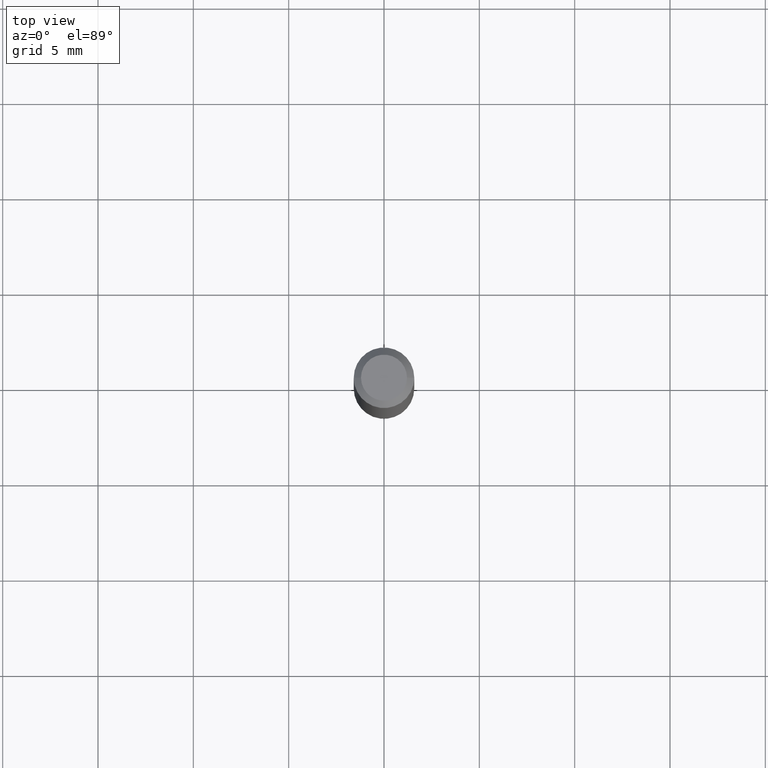
[diagram: clean part render]
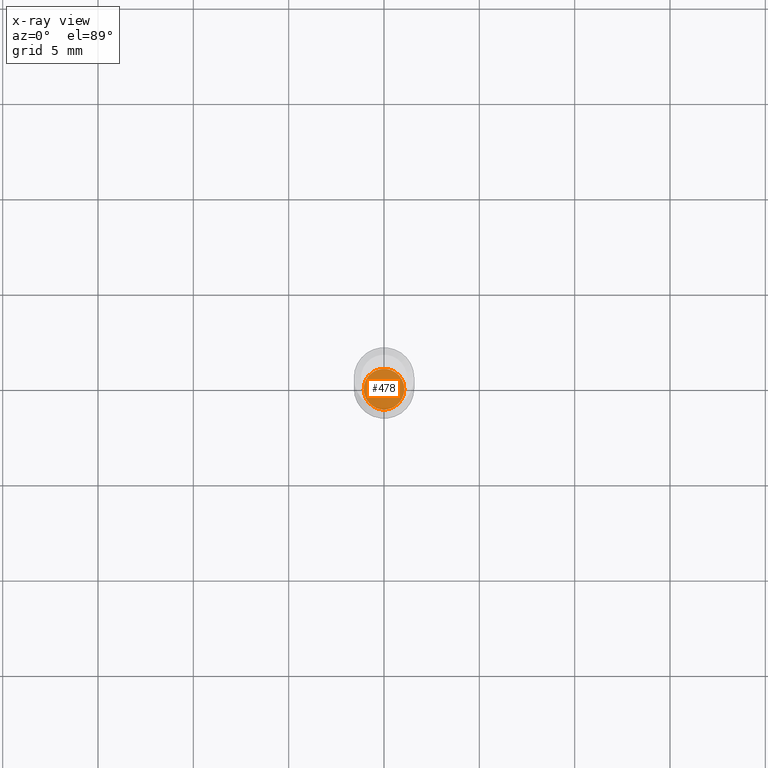
[diagram: x-ray — body ghosted, one internal face saturated and labeled with its STEP entity id]
A machine part, top view, then the same camera in x-ray: the body is ghosted and one INTERNAL B-rep face — a face not visible from any outside direction — is saturated and labeled: STEP entity #478.
In plain terms, the highlighted planar face has unit normal (-0, 0, 1).
Its self-contained STEP definition (entity closure, byte-faithful):
#29 = ORIENTED_EDGE ( 'NONE', *, *, #51, .F. ) ;
#51 = EDGE_CURVE ( 'NONE', #156, #68, #240, .T. ) ;
#68 = VERTEX_POINT ( 'NONE', #255 ) ;
#78 = ORIENTED_EDGE ( 'NONE', *, *, #153, .F. ) ;
#134 = DIRECTION ( 'NONE',  ( 1.000000000000000000, -6.982962677686260400E-15, 0.000000000000000000 ) ) ;
#153 = EDGE_CURVE ( 'NONE', #68, #156, #176, .T. ) ;
#156 = VERTEX_POINT ( 'NONE', #183 ) ;
#176 = CIRCLE ( 'NONE', #496, 0.04200000000000001649 ) ;
#177 = DIRECTION ( 'NONE',  ( -2.438088387897960049E-29, 3.491481338843145188E-15, 1.000000000000000000 ) ) ;
#181 = CARTESIAN_POINT ( 'NONE',  ( 3.355183202086007133E-29, -4.790312396892795908E-15, -1.372000000000000108 ) ) ;
#183 = CARTESIAN_POINT ( 'NONE',  ( -0.04200000000000001649, -4.489235220699443153E-15, -1.372000000000000108 ) ) ;
#225 = DIRECTION ( 'NONE',  ( -2.445468806185136597E-29, 3.491481338843145583E-15, 1.000000000000000000 ) ) ;
#240 = CIRCLE ( 'NONE', #511, 0.04200000000000001649 ) ;
#255 = CARTESIAN_POINT ( 'NONE',  ( 0.04200000000000001649, -5.083596829355619552E-15, -1.372000000000000108 ) ) ;
#258 = DIRECTION ( 'NONE',  ( 1.000000000000000000, -6.982962677686260400E-15, 0.000000000000000000 ) ) ;
#284 = EDGE_LOOP ( 'NONE', ( #78, #29 ) ) ;
#297 = FACE_OUTER_BOUND ( 'NONE', #284, .T. ) ;
#298 = DIRECTION ( 'NONE',  ( -2.445468806185136597E-29, 3.491481338843145583E-15, 1.000000000000000000 ) ) ;
#332 = PLANE ( 'NONE',  #339 ) ;
#339 = AXIS2_PLACEMENT_3D ( 'NONE', #410, #177, #375 ) ;
#375 = DIRECTION ( 'NONE',  ( 1.000000000000000000, -6.982962677686265922E-15, 4.876176775795935793E-29 ) ) ;
#388 = CARTESIAN_POINT ( 'NONE',  ( 3.355183202086007133E-29, -4.790312396892795908E-15, -1.372000000000000108 ) ) ;
#410 = CARTESIAN_POINT ( 'NONE',  ( 3.355183202086007133E-29, -4.790312396892795908E-15, -1.372000000000000108 ) ) ;
#478 = ADVANCED_FACE ( 'NONE', ( #297 ), #332, .F. ) ;
#496 = AXIS2_PLACEMENT_3D ( 'NONE', #181, #225, #134 ) ;
#511 = AXIS2_PLACEMENT_3D ( 'NONE', #388, #298, #258 ) ;